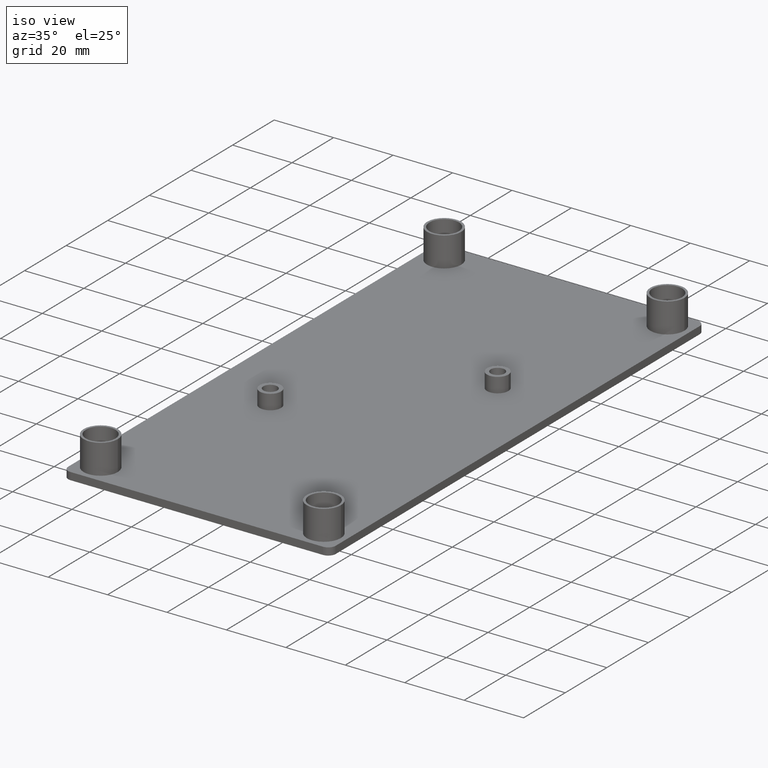
[diagram: clean part render]
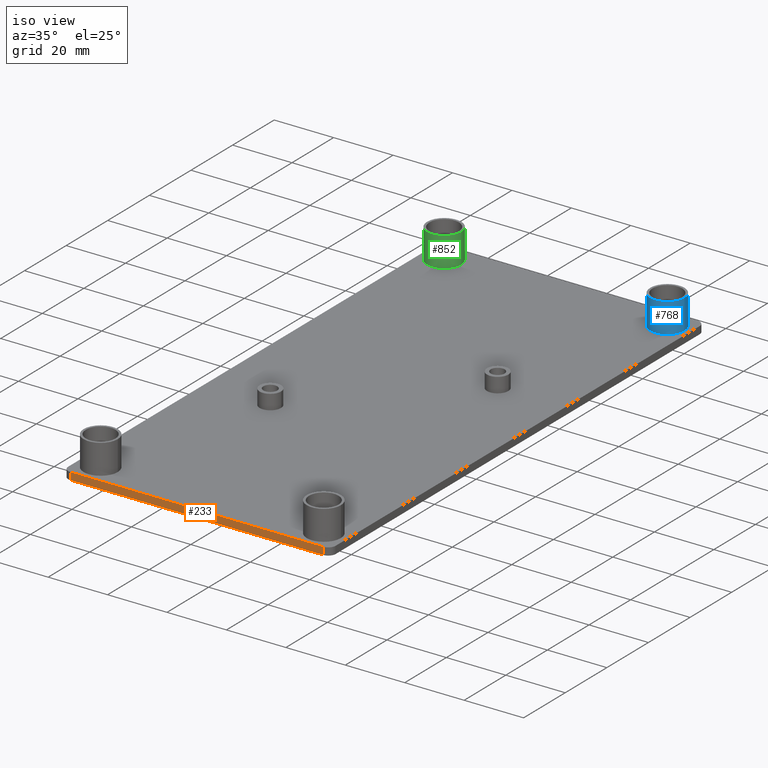
[diagram: same view with three faces highlighted in distinct colors, each labeled with its STEP entity id]
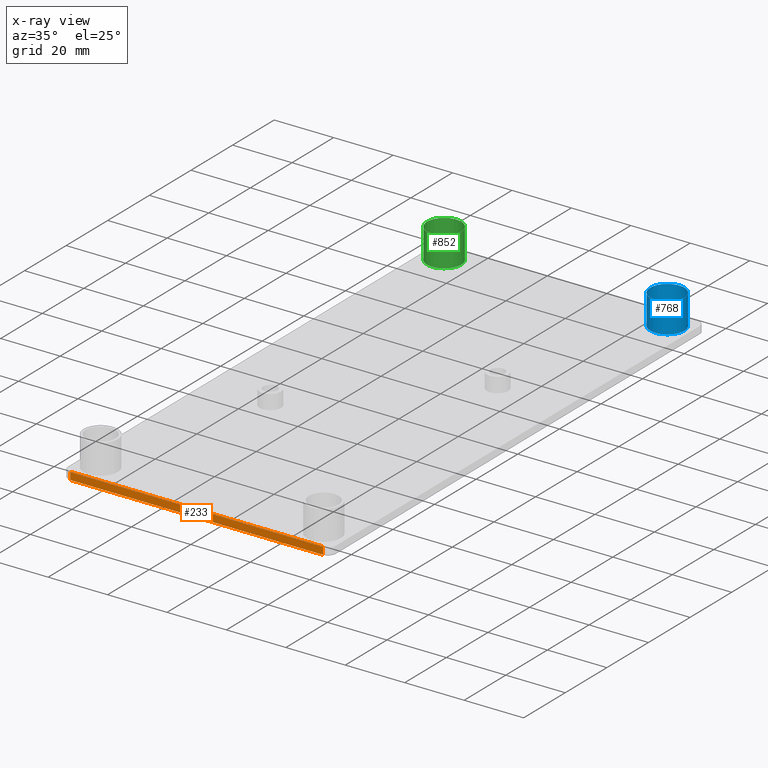
[diagram: x-ray of the same camera — body ghosted, the three highlighted faces saturated]
A machine part, iso view with three faces highlighted in distinct colors.
The next image is the same camera in x-ray (body ghosted, the three faces saturated) — at least one of them is partly hidden behind the body in this view.
Their STEP definitions:

[orange] entity #233 — the highlighted planar face has unit normal (0, 1, 0).
#176=CARTESIAN_POINT('',(-87.499953666665334,-89.999999500000001,-2.500000000000000));
#177=VERTEX_POINT('',#176);
#185=CARTESIAN_POINT('',(-87.499953666665334,-89.999999500000001,0.0));
#186=VERTEX_POINT('',#185);
#187=CARTESIAN_POINT('',(-87.499953666665334,-89.999999500000001,0.0));
#188=DIRECTION('',(0.0,0.0,-1.0));
#189=VECTOR('',#188,2.500000000000000);
#190=LINE('',#187,#189);
#191=EDGE_CURVE('',#186,#177,#190,.T.);
#203=CARTESIAN_POINT('',(-87.499953666665334,-89.999999500000001,0.0));
#204=DIRECTION('',(0.000000011764712,1.0,0.0));
#205=DIRECTION('',(1.0,-0.000000011764712,0.0));
#206=AXIS2_PLACEMENT_3D('',#203,#204,#205);
#207=PLANE('',#206);
#208=ORIENTED_EDGE('',*,*,#191,.T.);
#209=CARTESIAN_POINT('',(-2.499999666665318,-90.000000499999999,-2.500000000000000));
#210=VERTEX_POINT('',#209);
#211=CARTESIAN_POINT('',(-87.499953666665334,-89.999999500000001,-2.500000000000000));
#212=DIRECTION('',(1.0,-0.000000011764712,0.0));
#213=VECTOR('',#212,84.999954000000017);
#214=LINE('',#211,#213);
#215=EDGE_CURVE('',#177,#210,#214,.T.);
#216=ORIENTED_EDGE('',*,*,#215,.T.);
#217=CARTESIAN_POINT('',(-2.499999666665318,-90.000000499999999,0.0));
#218=VERTEX_POINT('',#217);
#219=CARTESIAN_POINT('',(-2.499999666665318,-90.000000499999999,0.0));
#220=DIRECTION('',(0.0,0.0,-1.0));
#221=VECTOR('',#220,2.500000000000000);
#222=LINE('',#219,#221);
#223=EDGE_CURVE('',#218,#210,#222,.T.);
#224=ORIENTED_EDGE('',*,*,#223,.F.);
#225=CARTESIAN_POINT('',(-87.499953666665334,-89.999999500000001,0.0));
#226=DIRECTION('',(1.0,-0.000000011764712,0.0));
#227=VECTOR('',#226,84.999954000000017);
#228=LINE('',#225,#227);
#229=EDGE_CURVE('',#186,#218,#228,.T.);
#230=ORIENTED_EDGE('',*,*,#229,.F.);
#231=EDGE_LOOP('',(#208,#216,#224,#230));
#232=FACE_OUTER_BOUND('',#231,.T.);
#233=ADVANCED_FACE('',(#232),#207,.F.);

[blue] entity #768 — the highlighted cylindrical surface (bore or boss wall) has radius 5.75 mm, axis along (0, 0, 1).
#313=CARTESIAN_POINT('',(-13.200000333334643,82.550000499999953,0.0));
#314=VERTEX_POINT('',#313);
#315=CARTESIAN_POINT('',(-1.700000333334643,82.550000499999953,0.0));
#316=VERTEX_POINT('',#315);
#317=CARTESIAN_POINT('',(-7.450000333334643,82.550000499999953,0.0));
#318=DIRECTION('',(0.0,0.0,1.0));
#319=DIRECTION('',(1.0,0.0,0.0));
#320=AXIS2_PLACEMENT_3D('',#317,#318,#319);
#321=CIRCLE('',#320,5.750000000000000);
#322=EDGE_CURVE('',#314,#316,#321,.T.);
#324=CARTESIAN_POINT('',(-7.450000333334643,82.550000499999953,0.0));
#325=DIRECTION('',(0.0,0.0,1.0));
#326=DIRECTION('',(1.0,0.0,0.0));
#327=AXIS2_PLACEMENT_3D('',#324,#325,#326);
#328=CIRCLE('',#327,5.750000000000000);
#329=EDGE_CURVE('',#316,#314,#328,.T.);
#734=CARTESIAN_POINT('',(-7.450000333334643,82.550000499999953,0.0));
#735=DIRECTION('',(0.0,0.0,1.0));
#736=DIRECTION('',(1.0,0.0,0.0));
#737=AXIS2_PLACEMENT_3D('',#734,#735,#736);
#738=CYLINDRICAL_SURFACE('',#737,5.750000000000000);
#739=CARTESIAN_POINT('',(-13.200000333334643,82.550000499999953,10.0));
#740=VERTEX_POINT('',#739);
#741=CARTESIAN_POINT('',(-1.700000333334643,82.550000499999953,10.0));
#742=VERTEX_POINT('',#741);
#743=CARTESIAN_POINT('',(-7.450000333334643,82.550000499999953,10.0));
#744=DIRECTION('',(0.0,0.0,1.0));
#745=DIRECTION('',(1.0,0.0,0.0));
#746=AXIS2_PLACEMENT_3D('',#743,#744,#745);
#747=CIRCLE('',#746,5.750000000000000);
#748=EDGE_CURVE('',#740,#742,#747,.T.);
#749=ORIENTED_EDGE('',*,*,#748,.F.);
#750=CARTESIAN_POINT('',(-7.450000333334643,82.550000499999953,10.0));
#751=DIRECTION('',(0.0,0.0,1.0));
#752=DIRECTION('',(1.0,0.0,0.0));
#753=AXIS2_PLACEMENT_3D('',#750,#751,#752);
#754=CIRCLE('',#753,5.750000000000000);
#755=EDGE_CURVE('',#742,#740,#754,.T.);
#756=ORIENTED_EDGE('',*,*,#755,.F.);
#757=CARTESIAN_POINT('',(-1.700000333334643,82.550000499999953,0.0));
#758=DIRECTION('',(0.0,0.0,1.0));
#759=VECTOR('',#758,10.0);
#760=LINE('',#757,#759);
#761=EDGE_CURVE('',#316,#742,#760,.T.);
#762=ORIENTED_EDGE('',*,*,#761,.F.);
#763=ORIENTED_EDGE('',*,*,#329,.T.);
#764=ORIENTED_EDGE('',*,*,#322,.T.);
#765=ORIENTED_EDGE('',*,*,#761,.T.);
#766=EDGE_LOOP('',(#749,#756,#762,#763,#764,#765));
#767=FACE_OUTER_BOUND('',#766,.T.);
#768=ADVANCED_FACE('',(#767),#738,.T.);

[green] entity #852 — the highlighted cylindrical surface (bore or boss wall) has radius 5.75 mm, axis along (0, 0, 1).
#333=CARTESIAN_POINT('',(-88.300000333334665,82.550045499999953,0.0));
#334=VERTEX_POINT('',#333);
#335=CARTESIAN_POINT('',(-76.800000333334665,82.550045499999953,0.0));
#336=VERTEX_POINT('',#335);
#337=CARTESIAN_POINT('',(-82.550000333334665,82.550045499999953,0.0));
#338=DIRECTION('',(0.0,0.0,1.0));
#339=DIRECTION('',(1.0,0.0,0.0));
#340=AXIS2_PLACEMENT_3D('',#337,#338,#339);
#341=CIRCLE('',#340,5.750000000000000);
#342=EDGE_CURVE('',#334,#336,#341,.T.);
#344=CARTESIAN_POINT('',(-82.550000333334665,82.550045499999953,0.0));
#345=DIRECTION('',(0.0,0.0,1.0));
#346=DIRECTION('',(1.0,0.0,0.0));
#347=AXIS2_PLACEMENT_3D('',#344,#345,#346);
#348=CIRCLE('',#347,5.750000000000000);
#349=EDGE_CURVE('',#336,#334,#348,.T.);
#818=CARTESIAN_POINT('',(-82.550000333334665,82.550045499999953,0.0));
#819=DIRECTION('',(0.0,0.0,1.0));
#820=DIRECTION('',(1.0,0.0,0.0));
#821=AXIS2_PLACEMENT_3D('',#818,#819,#820);
#822=CYLINDRICAL_SURFACE('',#821,5.750000000000000);
#823=CARTESIAN_POINT('',(-88.300000333334665,82.550045499999953,10.0));
#824=VERTEX_POINT('',#823);
#825=CARTESIAN_POINT('',(-76.800000333334665,82.550045499999953,10.0));
#826=VERTEX_POINT('',#825);
#827=CARTESIAN_POINT('',(-82.550000333334665,82.550045499999953,10.0));
#828=DIRECTION('',(0.0,0.0,1.0));
#829=DIRECTION('',(1.0,0.0,0.0));
#830=AXIS2_PLACEMENT_3D('',#827,#828,#829);
#831=CIRCLE('',#830,5.750000000000000);
#832=EDGE_CURVE('',#824,#826,#831,.T.);
#833=ORIENTED_EDGE('',*,*,#832,.F.);
#834=CARTESIAN_POINT('',(-82.550000333334665,82.550045499999953,10.0));
#835=DIRECTION('',(0.0,0.0,1.0));
#836=DIRECTION('',(1.0,0.0,0.0));
#837=AXIS2_PLACEMENT_3D('',#834,#835,#836);
#838=CIRCLE('',#837,5.750000000000000);
#839=EDGE_CURVE('',#826,#824,#838,.T.);
#840=ORIENTED_EDGE('',*,*,#839,.F.);
#841=CARTESIAN_POINT('',(-76.800000333334665,82.550045499999953,0.0));
#842=DIRECTION('',(0.0,0.0,1.0));
#843=VECTOR('',#842,10.0);
#844=LINE('',#841,#843);
#845=EDGE_CURVE('',#336,#826,#844,.T.);
#846=ORIENTED_EDGE('',*,*,#845,.F.);
#847=ORIENTED_EDGE('',*,*,#349,.T.);
#848=ORIENTED_EDGE('',*,*,#342,.T.);
#849=ORIENTED_EDGE('',*,*,#845,.T.);
#850=EDGE_LOOP('',(#833,#840,#846,#847,#848,#849));
#851=FACE_OUTER_BOUND('',#850,.T.);
#852=ADVANCED_FACE('',(#851),#822,.T.);